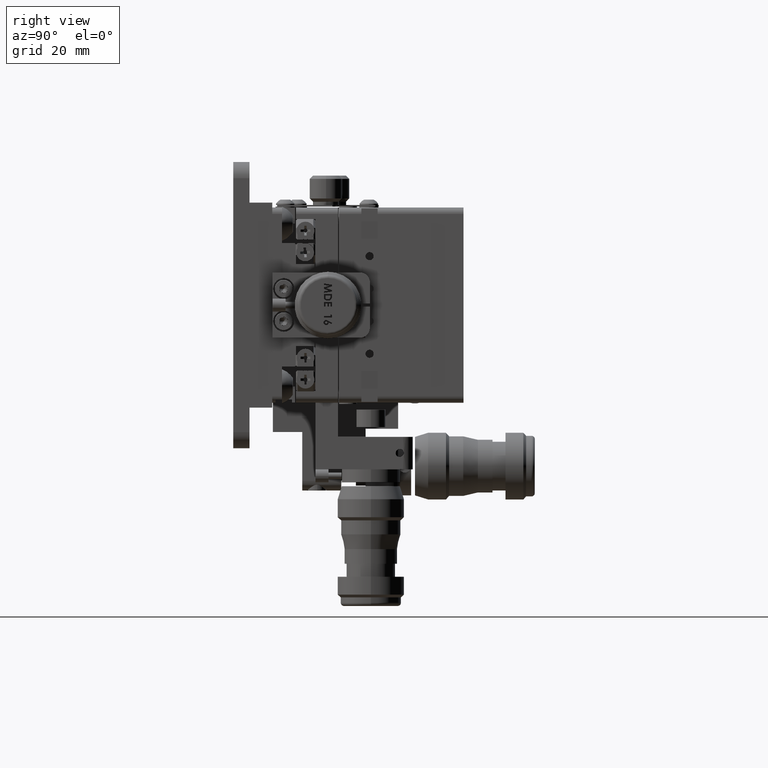
[diagram: clean part render]
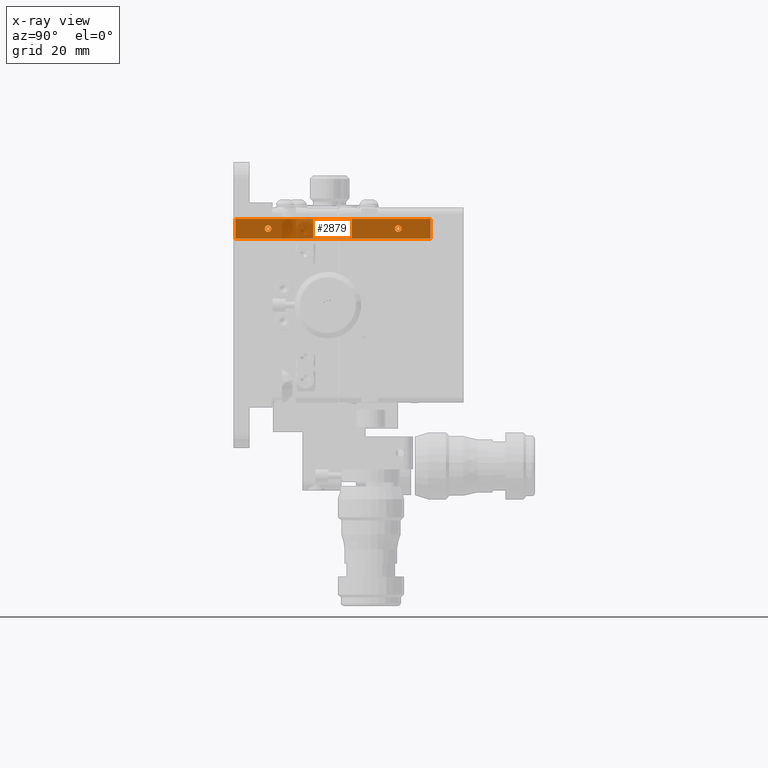
[diagram: x-ray — body ghosted, one internal face saturated and labeled with its STEP entity id]
A machine part, right view, then the same camera in x-ray: the body is ghosted and one INTERNAL B-rep face — a face not visible from any outside direction — is saturated and labeled: STEP entity #2879.
In plain terms, the highlighted planar face has unit normal (-1, -0, 0).
Its self-contained STEP definition (entity closure, byte-faithful):
#709 = CARTESIAN_POINT ( 'NONE',  ( -45.10000000000042100, 9.675000000000213900, 23.50000000000138200 ) ) ;
#1196 = CARTESIAN_POINT ( 'NONE',  ( -45.10000000000043500, 31.72500000000019000, 23.50000000000100200 ) ) ;
#1422 = EDGE_CURVE ( 'NONE', #48526, #48124, #2476, .T. ) ;
#2476 = LINE ( 'NONE', #55223, #44155 ) ;
#2755 = DIRECTION ( 'NONE',  ( 0.0000000000000000000, -1.000000000000000000, 1.692413147294460400E-014 ) ) ;
#2879 = ADVANCED_FACE ( 'NONE', ( #37065, #43384, #53960, #34233 ), #37541, .F. ) ;
#3969 = DIRECTION ( 'NONE',  ( 0.0000000000000000000, -1.000000000000000000, 1.692413147294460400E-014 ) ) ;
#4979 = VERTEX_POINT ( 'NONE', #29428 ) ;
#5805 = EDGE_CURVE ( 'NONE', #18778, #27878, #11981, .T. ) ;
#7115 = CARTESIAN_POINT ( 'NONE',  ( -45.10000000000047000, 60.70000000000015900, 20.50000000000050800 ) ) ;
#7403 = CARTESIAN_POINT ( 'NONE',  ( -45.10000000000045600, 50.70000000000019500, 23.50000000000067500 ) ) ;
#8707 = DIRECTION ( 'NONE',  ( -4.861451491865259100E-015, -1.709743457922769800E-014, -1.000000000000000000 ) ) ;
#8832 = AXIS2_PLACEMENT_3D ( 'NONE', #18907, #27773, #9661 ) ;
#9180 = VERTEX_POINT ( 'NONE', #34221 ) ;
#9404 = VERTEX_POINT ( 'NONE', #1196 ) ;
#9661 = DIRECTION ( 'NONE',  ( 0.0000000000000000000, -1.000000000000000000, 1.692413147294466100E-014 ) ) ;
#10364 = CARTESIAN_POINT ( 'NONE',  ( -45.10000000000043500, 30.70000000000019800, 23.50000000000102000 ) ) ;
#10807 = EDGE_CURVE ( 'NONE', #9404, #9180, #39433, .T. ) ;
#11141 = ORIENTED_EDGE ( 'NONE', *, *, #1422, .T. ) ;
#11235 = CARTESIAN_POINT ( 'NONE',  ( -45.10000000000045600, 50.70000000000019500, 23.50000000000067500 ) ) ;
#11445 = CARTESIAN_POINT ( 'NONE',  ( -45.10000000000044200, 60.70000000000025200, 26.50000000000050100 ) ) ;
#11690 = EDGE_CURVE ( 'NONE', #4979, #31196, #57713, .T. ) ;
#11740 = DIRECTION ( 'NONE',  ( 1.000000000000000000, 9.588503211615625100E-016, -4.243395332195568300E-015 ) ) ;
#11981 = CIRCLE ( 'NONE', #8832, 1.024999999999987700 ) ;
#12832 = EDGE_CURVE ( 'NONE', #31196, #4979, #31475, .T. ) ;
#13834 = ORIENTED_EDGE ( 'NONE', *, *, #15332, .F. ) ;
#13993 = ORIENTED_EDGE ( 'NONE', *, *, #48466, .F. ) ;
#14676 = DIRECTION ( 'NONE',  ( -4.861451491865259100E-015, -1.709743457922769800E-014, -1.000000000000000000 ) ) ;
#14954 = ORIENTED_EDGE ( 'NONE', *, *, #11690, .F. ) ;
#15332 = EDGE_CURVE ( 'NONE', #50175, #48124, #33996, .T. ) ;
#15346 = DIRECTION ( 'NONE',  ( 4.861451491865259100E-015, 1.709743457922769800E-014, 1.000000000000000000 ) ) ;
#16139 = DIRECTION ( 'NONE',  ( 9.331018297718412900E-016, -1.000000000000000000, 1.713906794265063300E-014 ) ) ;
#17166 = DIRECTION ( 'NONE',  ( 0.0000000000000000000, -1.000000000000000000, 1.692413147294466100E-014 ) ) ;
#17894 = VECTOR ( 'NONE', #8707, 1000.000000000000000 ) ;
#18278 = ORIENTED_EDGE ( 'NONE', *, *, #43929, .T. ) ;
#18778 = VERTEX_POINT ( 'NONE', #37759 ) ;
#18907 = CARTESIAN_POINT ( 'NONE',  ( -45.10000000000042100, 10.70000000000020200, 23.50000000000136400 ) ) ;
#20308 = DIRECTION ( 'NONE',  ( -1.000000000000000000, -9.588503211615520600E-016, 4.861451491865275700E-015 ) ) ;
#22497 = AXIS2_PLACEMENT_3D ( 'NONE', #53510, #26424, #3969 ) ;
#22607 = ORIENTED_EDGE ( 'NONE', *, *, #5805, .F. ) ;
#23246 = LINE ( 'NONE', #11445, #45926 ) ;
#23606 = VERTEX_POINT ( 'NONE', #44507 ) ;
#24653 = AXIS2_PLACEMENT_3D ( 'NONE', #11235, #38116, #2755 ) ;
#25069 = ORIENTED_EDGE ( 'NONE', *, *, #33646, .F. ) ;
#25866 = CARTESIAN_POINT ( 'NONE',  ( -45.10000000000047000, 60.70000000000015900, 20.50000000000050800 ) ) ;
#26244 = CARTESIAN_POINT ( 'NONE',  ( -45.10000000000039200, 0.7000000000002455400, 26.50000000000152800 ) ) ;
#26424 = DIRECTION ( 'NONE',  ( 1.000000000000000000, 9.588503211615625100E-016, -4.243395332195568300E-015 ) ) ;
#27773 = DIRECTION ( 'NONE',  ( 1.000000000000000000, 9.588503211615625100E-016, -4.243395332195568300E-015 ) ) ;
#27878 = VERTEX_POINT ( 'NONE', #709 ) ;
#28802 = EDGE_LOOP ( 'NONE', ( #13993, #28807 ) ) ;
#28807 = ORIENTED_EDGE ( 'NONE', *, *, #10807, .F. ) ;
#29216 = LINE ( 'NONE', #49564, #17894 ) ;
#29428 = CARTESIAN_POINT ( 'NONE',  ( -45.10000000000045600, 51.72500000000018600, 23.50000000000066100 ) ) ;
#29823 = CIRCLE ( 'NONE', #22497, 1.024999999999991300 ) ;
#30670 = AXIS2_PLACEMENT_3D ( 'NONE', #39733, #52960, #17166 ) ;
#31196 = VERTEX_POINT ( 'NONE', #34960 ) ;
#31453 = CARTESIAN_POINT ( 'NONE',  ( -45.10000000000042100, 0.7000000000001415100, 20.50000000000153500 ) ) ;
#31475 = CIRCLE ( 'NONE', #24653, 1.024999999999991300 ) ;
#31597 = EDGE_CURVE ( 'NONE', #23606, #50175, #29216, .T. ) ;
#33646 = EDGE_CURVE ( 'NONE', #27878, #18778, #41805, .T. ) ;
#33996 = LINE ( 'NONE', #7115, #48151 ) ;
#34188 = DIRECTION ( 'NONE',  ( 9.331018297718412900E-016, -1.000000000000000000, 1.713906794265063300E-014 ) ) ;
#34221 = CARTESIAN_POINT ( 'NONE',  ( -45.10000000000043500, 29.67500000000020700, 23.50000000000103700 ) ) ;
#34233 = FACE_OUTER_BOUND ( 'NONE', #40067, .T. ) ;
#34960 = CARTESIAN_POINT ( 'NONE',  ( -45.10000000000045600, 49.67500000000020300, 23.50000000000069300 ) ) ;
#37065 = FACE_BOUND ( 'NONE', #57441, .T. ) ;
#37541 = PLANE ( 'NONE',  #49238 ) ;
#37759 = CARTESIAN_POINT ( 'NONE',  ( -45.10000000000042100, 11.72500000000019000, 23.50000000000134600 ) ) ;
#38116 = DIRECTION ( 'NONE',  ( 1.000000000000000000, 9.588503211615625100E-016, -4.243395332195568300E-015 ) ) ;
#39433 = CIRCLE ( 'NONE', #55249, 1.024999999999991300 ) ;
#39733 = CARTESIAN_POINT ( 'NONE',  ( -45.10000000000042100, 10.70000000000020200, 23.50000000000136400 ) ) ;
#40067 = EDGE_LOOP ( 'NONE', ( #11141, #13834, #55783, #18278 ) ) ;
#41805 = CIRCLE ( 'NONE', #30670, 1.024999999999987700 ) ;
#43356 = EDGE_LOOP ( 'NONE', ( #25069, #22607 ) ) ;
#43384 = FACE_BOUND ( 'NONE', #28802, .T. ) ;
#43929 = EDGE_CURVE ( 'NONE', #23606, #48526, #23246, .T. ) ;
#44155 = VECTOR ( 'NONE', #14676, 1000.000000000000000 ) ;
#44507 = CARTESIAN_POINT ( 'NONE',  ( -45.10000000000044200, 60.70000000000025200, 26.50000000000050100 ) ) ;
#45083 = DIRECTION ( 'NONE',  ( 0.0000000000000000000, -1.000000000000000000, 1.692413147294460400E-014 ) ) ;
#45926 = VECTOR ( 'NONE', #34188, 1000.000000000000000 ) ;
#47609 = CARTESIAN_POINT ( 'NONE',  ( -45.10000000000057700, 60.69999999999980400, 5.100839283074468700E-013 ) ) ;
#48124 = VERTEX_POINT ( 'NONE', #31453 ) ;
#48151 = VECTOR ( 'NONE', #16139, 1000.000000000000000 ) ;
#48466 = EDGE_CURVE ( 'NONE', #9180, #9404, #29823, .T. ) ;
#48526 = VERTEX_POINT ( 'NONE', #26244 ) ;
#49238 = AXIS2_PLACEMENT_3D ( 'NONE', #47609, #20308, #15346 ) ;
#49564 = CARTESIAN_POINT ( 'NONE',  ( -45.10000000000057700, 60.69999999999980400, 5.100839283074468700E-013 ) ) ;
#50175 = VERTEX_POINT ( 'NONE', #25866 ) ;
#51219 = DIRECTION ( 'NONE',  ( 0.0000000000000000000, -1.000000000000000000, 1.692413147294460400E-014 ) ) ;
#52960 = DIRECTION ( 'NONE',  ( 1.000000000000000000, 9.588503211615625100E-016, -4.243395332195568300E-015 ) ) ;
#53510 = CARTESIAN_POINT ( 'NONE',  ( -45.10000000000043500, 30.70000000000019800, 23.50000000000102000 ) ) ;
#53960 = FACE_BOUND ( 'NONE', #43356, .T. ) ;
#55213 = DIRECTION ( 'NONE',  ( 1.000000000000000000, 9.588503211615625100E-016, -4.243395332195568300E-015 ) ) ;
#55223 = CARTESIAN_POINT ( 'NONE',  ( -45.10000000000052000, 0.6999999999997910100, 1.538428004866484900E-012 ) ) ;
#55249 = AXIS2_PLACEMENT_3D ( 'NONE', #10364, #55213, #51219 ) ;
#55783 = ORIENTED_EDGE ( 'NONE', *, *, #31597, .F. ) ;
#56022 = AXIS2_PLACEMENT_3D ( 'NONE', #7403, #11740, #45083 ) ;
#56697 = ORIENTED_EDGE ( 'NONE', *, *, #12832, .F. ) ;
#57441 = EDGE_LOOP ( 'NONE', ( #56697, #14954 ) ) ;
#57713 = CIRCLE ( 'NONE', #56022, 1.024999999999991300 ) ;